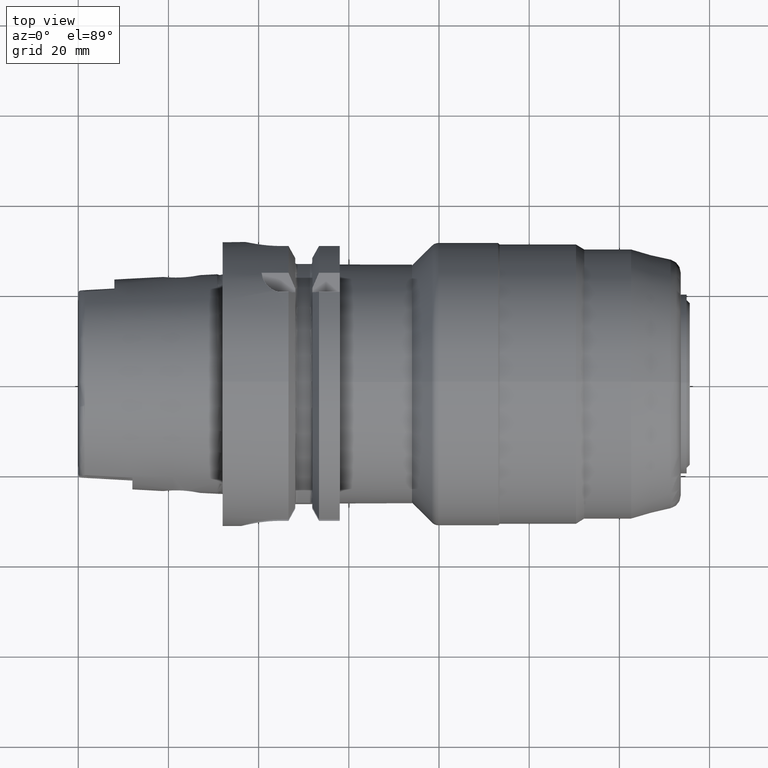
[diagram: clean part render]
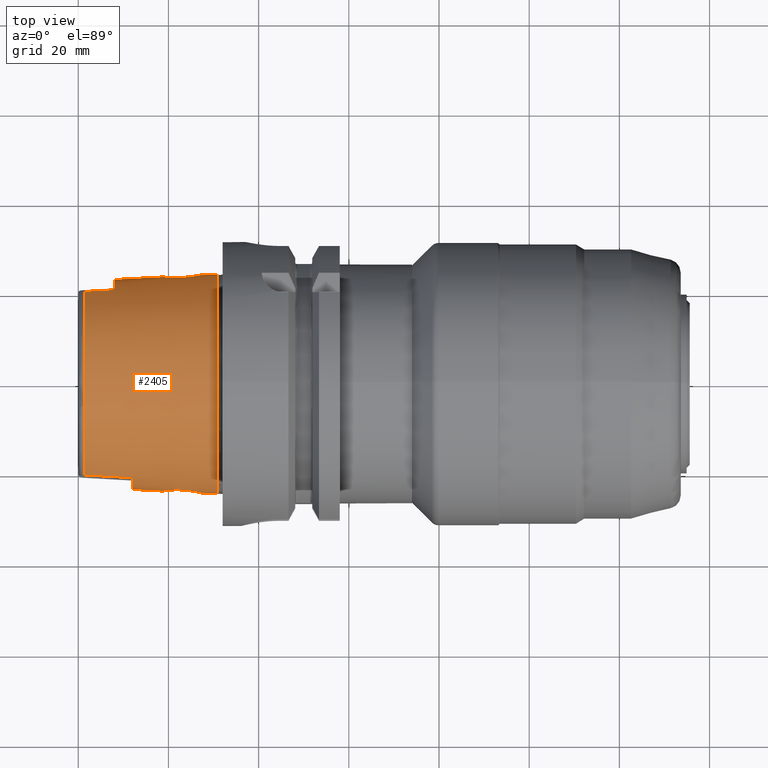
[diagram: same view with one face highlighted and labeled with its STEP entity id]
A machine part, top view. The second image highlights one B-rep face of the part: STEP entity #2405.
In plain terms, the highlighted conical surface has half-angle 2.862 deg.
Its self-contained STEP definition (entity closure, byte-faithful):
#2 = AXIS2_PLACEMENT_3D ( 'NONE', #1925, #3089, #1618 ) ;
#6 = CARTESIAN_POINT ( 'NONE',  ( 1.425093574584161500, 20.33595230467517100, -10.46629516310663500 ) ) ;
#60 = ORIENTED_EDGE ( 'NONE', *, *, #1464, .F. ) ;
#62 = AXIS2_PLACEMENT_3D ( 'NONE', #937, #74, #1803 ) ;
#74 = DIRECTION ( 'NONE',  ( -1.000000000000000000, -0.0000000000000000000, -0.0000000000000000000 ) ) ;
#79 = CARTESIAN_POINT ( 'NONE',  ( 8.000000000000000000, 20.71574050662263700, 10.44500336344006000 ) ) ;
#125 = CARTESIAN_POINT ( 'NONE',  ( 12.00000000000000000, -20.94577213106061100, -10.43238370813136300 ) ) ;
#157 = CARTESIAN_POINT ( 'NONE',  ( 25.18747572520790000, 23.78709185990440000, -3.610292531009739600 ) ) ;
#162 = CARTESIAN_POINT ( 'NONE',  ( 22.70717009949273900, -23.55372203154160000, 4.257179924091874000 ) ) ;
#167 = CARTESIAN_POINT ( 'NONE',  ( 20.66361652814779500, 23.56809046757185700, -3.544801830368131200 ) ) ;
#171 = CARTESIAN_POINT ( 'NONE',  ( 22.16985118510664800, -23.54072065059552800, 4.177378089973782200 ) ) ;
#180 = AXIS2_PLACEMENT_3D ( 'NONE', #3434, #1966, #1695 ) ;
#183 = CARTESIAN_POINT ( 'NONE',  ( 26.13301721065086300, 23.94384295948286800, 2.837393498273693500 ) ) ;
#190 = CARTESIAN_POINT ( 'NONE',  ( 24.33779940106989100, -23.67112881943512500, -4.062324369604381100 ) ) ;
#200 = CARTESIAN_POINT ( 'NONE',  ( 24.33094210324487200, 23.67513182186267400, -4.036686136669555200 ) ) ;
#202 = CARTESIAN_POINT ( 'NONE',  ( 18.88238772175079200, -23.72949894044217000, -0.8331179126223212700 ) ) ;
#211 = CARTESIAN_POINT ( 'NONE',  ( 21.12914641634791500, 23.54492637721436700, 3.855821941500016800 ) ) ;
#214 = CARTESIAN_POINT ( 'NONE',  ( 19.51172419005296300, -23.65735642368646900, -2.368118799417197300 ) ) ;
#215 = CARTESIAN_POINT ( 'NONE',  ( 3.341869946698635500, -20.44698660979812000, 10.45998592916148300 ) ) ;
#225 = CARTESIAN_POINT ( 'NONE',  ( 8.783636793981610700, -20.76092733119836400, 10.44249121731212800 ) ) ;
#277 = CARTESIAN_POINT ( 'NONE',  ( 19.19966803750817900, 23.68904204325100300, -1.895235483514292600 ) ) ;
#278 = CIRCLE ( 'NONE', #180, 23.20000000000000300 ) ;
#315 = CARTESIAN_POINT ( 'NONE',  ( 30.80149719334658400, 0.0000000000000000000, 24.34007485966732900 ) ) ;
#347 = B_SPLINE_CURVE_WITH_KNOTS ( 'NONE', 3,
 ( #2222, #3376, #1595, #214, #1633, #1301, #202, #1041, #509, #2793, #1323, #1062, #3629, #745, #768, #1942, #2780, #1926, #3676, #3077, #753, #171, #2479, #162, #1050, #3660, #2453, #1026, #1015, #3646, #1883, #3362, #1604, #2211, #491, #3335, #1334, #782, #1915, #3044, #2759, #3054, #3090, #3346, #3635, #2767, #2466, #1351, #1901, #3386, #3060, #1647, #736, #190, #2183, #2194, #2743, #480, #795, #3401, #3416 ),
 .UNSPECIFIED., .T., .F.,
 ( 4, 3, 3, 3, 3, 3, 3, 3, 3, 3, 3, 3, 3, 3, 3, 3, 3, 3, 3, 3, 4 ),
 ( 0.0000000000000000000, 0.05000000000000000300, 0.1000000000000000100, 0.1499999999999999900, 0.2000000000000000100, 0.2500000000000000000, 0.2999999999999999900, 0.3499999999999999800, 0.4000000000000000200, 0.4500000000000000100, 0.5000000000000000000, 0.5500000000000000400, 0.5999999999999999800, 0.6500000000000000200, 0.6999999999999999600, 0.7500000000000000000, 0.8000000000000000400, 0.8499999999999999800, 0.9000000000000000200, 0.9499999999999999600, 1.000000000000000000 ),
 .UNSPECIFIED. ) ;
#359 = CARTESIAN_POINT ( 'NONE',  ( 1.425093574584161500, -20.33595230467517100, -10.46629516310663300 ) ) ;
#398 = CARTESIAN_POINT ( 'NONE',  ( 30.80149719334658400, 0.0000000000000000000, 0.0000000000000000000 ) ) ;
#399 = VERTEX_POINT ( 'NONE', #3316 ) ;
#425 = ORIENTED_EDGE ( 'NONE', *, *, #572, .T. ) ;
#469 = CARTESIAN_POINT ( 'NONE',  ( 21.62476911272498400, 23.53316828497549600, -4.063857463222896100 ) ) ;
#476 = CARTESIAN_POINT ( 'NONE',  ( 24.82761096484166100, 23.73659309589318100, -3.816644248119909700 ) ) ;
#480 = CARTESIAN_POINT ( 'NONE',  ( 22.17327074711487000, -23.54139096424686900, -4.174578255460065900 ) ) ;
#487 = CARTESIAN_POINT ( 'NONE',  ( 26.14555546995022400, 23.94554545420960400, -2.826387748094202100 ) ) ;
#488 = CARTESIAN_POINT ( 'NONE',  ( 1.425093574584161500, -20.33595230467517100, -10.46629516310663300 ) ) ;
#491 = CARTESIAN_POINT ( 'NONE',  ( 24.83917356003768600, -23.73686520047144900, 3.819545358883261500 ) ) ;
#492 = CARTESIAN_POINT ( 'NONE',  ( 1.425093574584161500, -20.33595230467517100, 10.46629516310663300 ) ) ;
#493 = VERTEX_POINT ( 'NONE', #1938 ) ;
#509 = CARTESIAN_POINT ( 'NONE',  ( 18.77657874996498700, -23.74388441802556200, 0.2718322433420735700 ) ) ;
#510 = CARTESIAN_POINT ( 'NONE',  ( 5.258662882695443100, -20.55774047591732800, 10.45376734632754500 ) ) ;
#569 = B_SPLINE_CURVE_WITH_KNOTS ( 'NONE', 3,
 ( #167, #2179, #469, #2460, #3671, #3656, #3384, #1320, #200, #2204, #476, #2488, #157, #3643, #487, #1910, #1642, #2789, #1045, #3087, #2449, #791, #2776, #183, #1060, #2220, #2190, #3072, #1345, #1937, #3625, #2169, #211, #2807, #1072, #3100, #1591, #1877, #2830, #3413, #277, #2516, #3114, #2848 ),
 .UNSPECIFIED., .T., .F.,
 ( 4, 2, 2, 2, 2, 2, 2, 2, 2, 2, 2, 2, 2, 2, 2, 2, 2, 2, 2, 2, 2, 4 ),
 ( 0.0000000000000000000, 0.06250000000000015300, 0.09375000000000004200, 0.1249999999999999400, 0.1562499999999998300, 0.1718749999999997500, 0.1874999999999996700, 0.2500000000000000000, 0.3125000000000003300, 0.3750000000000006700, 0.4062500000000008900, 0.4375000000000010500, 0.5000000000000013300, 0.5312500000000013300, 0.5625000000000012200, 0.6250000000000011100, 0.6875000000000008900, 0.7500000000000006700, 0.8125000000000005600, 0.8750000000000003300, 0.9375000000000002200, 1.000000000000000000 ),
 .UNSPECIFIED. ) ;
#572 = EDGE_CURVE ( 'NONE', #3374, #399, #2805, .T. ) ;
#710 = EDGE_CURVE ( 'NONE', #493, #1373, #278, .T. ) ;
#729 = CONICAL_SURFACE ( 'NONE', #3240, 24.34007485966732900, 0.04995839572194275800 ) ;
#736 = CARTESIAN_POINT ( 'NONE',  ( 24.83495594207316900, -23.73367690106135400, -3.850047303755901300 ) ) ;
#745 = CARTESIAN_POINT ( 'NONE',  ( 19.81238089840712400, -23.62580361664449700, 2.833961536049630400 ) ) ;
#753 = CARTESIAN_POINT ( 'NONE',  ( 21.90230744076258800, -23.53665718921053300, 4.123714867043190700 ) ) ;
#761 = EDGE_CURVE ( 'NONE', #2223, #1373, #1852, .T. ) ;
#763 = ORIENTED_EDGE ( 'NONE', *, *, #2925, .T. ) ;
#768 = CARTESIAN_POINT ( 'NONE',  ( 20.19728467065028000, -23.59274732334468500, 3.223714604298466100 ) ) ;
#782 = CARTESIAN_POINT ( 'NONE',  ( 25.75727728703480700, -23.87318830650327700, 3.224289457282159000 ) ) ;
#791 = CARTESIAN_POINT ( 'NONE',  ( 26.73001574333116200, 24.06459715707596900, 1.879263713425604500 ) ) ;
#795 = CARTESIAN_POINT ( 'NONE',  ( 21.62218706724903300, -23.53293705241803100, -4.064443328656195400 ) ) ;
#809 = CARTESIAN_POINT ( 'NONE',  ( 1.425093574584161500, 20.33595230467517100, -10.46629516310663500 ) ) ;
#822 = AXIS2_PLACEMENT_3D ( 'NONE', #398, #2441, #2722 ) ;
#847 = CARTESIAN_POINT ( 'NONE',  ( 7.450313914593323300, 20.68407181687250300, -10.44675641790242300 ) ) ;
#877 = CARTESIAN_POINT ( 'NONE',  ( 1.425093574584161500, 20.33595230467517100, 10.46629516310663500 ) ) ;
#918 = VERTEX_POINT ( 'NONE', #877 ) ;
#927 = EDGE_CURVE ( 'NONE', #493, #918, #3641, .T. ) ;
#930 = CARTESIAN_POINT ( 'NONE',  ( 2.249608482552708300, 20.38369718093662500, 10.46358678570156000 ) ) ;
#937 = CARTESIAN_POINT ( 'NONE',  ( 1.425093574584161500, 0.0000000000000000000, 0.0000000000000000000 ) ) ;
#965 = ORIENTED_EDGE ( 'NONE', *, *, #761, .T. ) ;
#987 = CARTESIAN_POINT ( 'NONE',  ( 8.166346921571953700, -20.72541075632289400, -10.44444456954958300 ) ) ;
#1003 = AXIS2_PLACEMENT_3D ( 'NONE', #1140, #2871, #1120 ) ;
#1014 = CARTESIAN_POINT ( 'NONE',  ( 8.000000000000000000, 20.71574050662263700, -10.44500336344006000 ) ) ;
#1015 = CARTESIAN_POINT ( 'NONE',  ( 23.52597916883521400, -23.60233624867122900, 4.218162225798813800 ) ) ;
#1026 = CARTESIAN_POINT ( 'NONE',  ( 23.38886015811622700, -23.59275592822521300, 4.232737390913704300 ) ) ;
#1041 = CARTESIAN_POINT ( 'NONE',  ( 18.77499405094171800, -23.74337112039023600, -0.2849622680127422700 ) ) ;
#1045 = CARTESIAN_POINT ( 'NONE',  ( 27.17844325035120400, 24.16341902765280700, 0.2849698217314515800 ) ) ;
#1050 = CARTESIAN_POINT ( 'NONE',  ( 22.97917669523274500, -23.56780964208686400, 4.255699465829896300 ) ) ;
#1060 = CARTESIAN_POINT ( 'NONE',  ( 25.75197427222897100, 23.87242083910850000, 3.228076906425898100 ) ) ;
#1062 = CARTESIAN_POINT ( 'NONE',  ( 19.20340123074108600, -23.68822864218061500, 1.905225742128575000 ) ) ;
#1072 = CARTESIAN_POINT ( 'NONE',  ( 19.81034850176890000, 23.62609199216923600, 2.830691077890888700 ) ) ;
#1120 = DIRECTION ( 'NONE',  ( 0.0000000000000000000, 0.0000000000000000000, 1.000000000000000000 ) ) ;
#1123 = ORIENTED_EDGE ( 'NONE', *, *, #1355, .F. ) ;
#1140 = CARTESIAN_POINT ( 'NONE',  ( 1.425093574584161500, 0.0000000000000000000, 0.0000000000000000000 ) ) ;
#1185 = EDGE_CURVE ( 'NONE', #3760, #3760, #347, .T. ) ;
#1238 = EDGE_CURVE ( 'NONE', #2223, #1860, #2795, .T. ) ;
#1260 = CARTESIAN_POINT ( 'NONE',  ( 10.08316607788346400, -20.83571793241839000, -10.43837222232888200 ) ) ;
#1301 = CARTESIAN_POINT ( 'NONE',  ( 18.98978139255986300, -23.71562676049410400, -1.381273557231900200 ) ) ;
#1320 = CARTESIAN_POINT ( 'NONE',  ( 24.07281959370179400, 23.64792003798675100, -4.117531384564303600 ) ) ;
#1323 = CARTESIAN_POINT ( 'NONE',  ( 18.99572566823791300, -23.71556969111713900, 1.392136284556626500 ) ) ;
#1334 = CARTESIAN_POINT ( 'NONE',  ( 25.30508331705895800, -23.80439428843181200, 3.533733242334153400 ) ) ;
#1345 = CARTESIAN_POINT ( 'NONE',  ( 24.07445698258153400, 23.64853521158847400, 4.114493699329996100 ) ) ;
#1351 = CARTESIAN_POINT ( 'NONE',  ( 26.75110390981613800, -24.06685499695399600, -1.904061382926910200 ) ) ;
#1355 = EDGE_CURVE ( 'NONE', #3374, #918, #2513, .T. ) ;
#1373 = VERTEX_POINT ( 'NONE', #1014 ) ;
#1377 = CARTESIAN_POINT ( 'NONE',  ( 7.725156798764171400, 20.69990886535863300, -10.44587900306095400 ) ) ;
#1384 = B_SPLINE_CURVE_WITH_KNOTS ( 'NONE', 3,
 ( #125, #1260, #987, #3010, #1511, #2379, #359 ),
 .UNSPECIFIED., .F., .F.,
 ( 4, 3, 4 ),
 ( 0.0000000000000000000, 0.005760000057748238000, 0.01059252934237851100 ),
 .UNSPECIFIED. ) ;
#1402 = EDGE_LOOP ( 'NONE', ( #2948 ) ) ;
#1426 = ORIENTED_EDGE ( 'NONE', *, *, #710, .F. ) ;
#1464 = EDGE_CURVE ( 'NONE', #2763, #399, #3393, .T. ) ;
#1484 = FACE_BOUND ( 'NONE', #1402, .T. ) ;
#1499 = CARTESIAN_POINT ( 'NONE',  ( 1.974769841689880500, 20.36778795857090400, 10.46448772171441500 ) ) ;
#1511 = CARTESIAN_POINT ( 'NONE',  ( 4.641382270535288500, -20.52206617993723400, -10.45577232322931000 ) ) ;
#1577 = FACE_BOUND ( 'NONE', #1802, .T. ) ;
#1581 = VERTEX_POINT ( 'NONE', #1696 ) ;
#1591 = CARTESIAN_POINT ( 'NONE',  ( 18.99388402952158100, 23.71569589717962500, 1.388473049825107400 ) ) ;
#1595 = CARTESIAN_POINT ( 'NONE',  ( 19.82372397669924900, -23.62554403242561200, -2.842544309768315600 ) ) ;
#1604 = CARTESIAN_POINT ( 'NONE',  ( 24.33810937420025400, -23.67648096969749700, 4.030870427547173000 ) ) ;
#1618 = DIRECTION ( 'NONE',  ( 0.0000000000000000000, 0.0000000000000000000, 1.000000000000000000 ) ) ;
#1629 = ORIENTED_EDGE ( 'NONE', *, *, #2775, .T. ) ;
#1633 = CARTESIAN_POINT ( 'NONE',  ( 19.19972440340668000, -23.68916881494732600, -1.893693289066078500 ) ) ;
#1642 = CARTESIAN_POINT ( 'NONE',  ( 26.95804715310587700, 24.11425238373152200, -1.392442890027241000 ) ) ;
#1647 = CARTESIAN_POINT ( 'NONE',  ( 25.29840340258237000, -23.80409646007306500, -3.533464944530263300 ) ) ;
#1672 = CIRCLE ( 'NONE', #822, 24.34007485966732900 ) ;
#1695 = DIRECTION ( 'NONE',  ( 0.0000000000000000000, 0.0000000000000000000, 1.000000000000000000 ) ) ;
#1696 = CARTESIAN_POINT ( 'NONE',  ( 20.66361652814780200, 23.56809046757186000, -3.544801830368131700 ) ) ;
#1802 = EDGE_LOOP ( 'NONE', ( #763 ) ) ;
#1803 = DIRECTION ( 'NONE',  ( 0.0000000000000000000, 0.0000000000000000000, 1.000000000000000000 ) ) ;
#1825 = CARTESIAN_POINT ( 'NONE',  ( 1.425093574584161500, 20.33595230467517100, 10.46629516310663500 ) ) ;
#1852 = B_SPLINE_CURVE_WITH_KNOTS ( 'NONE', 3,
 ( #809, #2813, #1989, #3449, #847, #1377, #3167 ),
 .UNSPECIFIED., .F., .F.,
 ( 4, 3, 4 ),
 ( 2.168404344971008900E-019, 0.005760000065658930900, 0.006585900617290585400 ),
 .UNSPECIFIED. ) ;
#1860 = VERTEX_POINT ( 'NONE', #488 ) ;
#1877 = CARTESIAN_POINT ( 'NONE',  ( 18.77597638874773600, 23.74390315330566300, 0.2678564356709001200 ) ) ;
#1883 = CARTESIAN_POINT ( 'NONE',  ( 23.80189075954666900, -23.62521458459382400, 4.168197664816903900 ) ) ;
#1901 = CARTESIAN_POINT ( 'NONE',  ( 26.44729116604683800, -24.00599535762667700, -2.366571100399792900 ) ) ;
#1910 = CARTESIAN_POINT ( 'NONE',  ( 26.75194818606380000, 24.06699491119911000, -1.902665969513414900 ) ) ;
#1915 = CARTESIAN_POINT ( 'NONE',  ( 26.13753732405685800, -23.94438315670680200, 2.834601726758929600 ) ) ;
#1922 = ORIENTED_EDGE ( 'NONE', *, *, #1238, .F. ) ;
#1925 = CARTESIAN_POINT ( 'NONE',  ( 12.00000000000000000, 0.0000000000000000000, 0.0000000000000000000 ) ) ;
#1926 = CARTESIAN_POINT ( 'NONE',  ( 21.13908023345470600, -23.54755106417474800, 3.831216781536157500 ) ) ;
#1937 = CARTESIAN_POINT ( 'NONE',  ( 23.25006467060924100, 23.57679908238506500, 4.283732951161183200 ) ) ;
#1938 = CARTESIAN_POINT ( 'NONE',  ( 8.000000000000000000, 20.71574050662263700, 10.44500336344006000 ) ) ;
#1942 = CARTESIAN_POINT ( 'NONE',  ( 20.66373368261011800, -23.56873316037696100, 3.540565595432893200 ) ) ;
#1966 = DIRECTION ( 'NONE',  ( -1.000000000000000000, 0.0000000000000000000, 0.0000000000000000000 ) ) ;
#1989 = CARTESIAN_POINT ( 'NONE',  ( 5.258662882695442200, 20.55774047591733100, -10.45376734632754500 ) ) ;
#2038 = DIRECTION ( 'NONE',  ( 0.0000000000000000000, 0.0000000000000000000, -1.000000000000000000 ) ) ;
#2052 = FACE_BOUND ( 'NONE', #3243, .T. ) ;
#2087 = EDGE_CURVE ( 'NONE', #2763, #1860, #1384, .T. ) ;
#2112 = CARTESIAN_POINT ( 'NONE',  ( 1.425093574584161500, -20.33595230467517100, 10.46629516310663300 ) ) ;
#2169 = CARTESIAN_POINT ( 'NONE',  ( 21.63318729153229100, 23.53261109606477700, 4.069510646678135200 ) ) ;
#2179 = CARTESIAN_POINT ( 'NONE',  ( 21.11983206216902400, 23.54463449942226900, -3.854118344444557000 ) ) ;
#2183 = CARTESIAN_POINT ( 'NONE',  ( 23.80198396375098800, -23.62429930160084600, -4.173408924040481700 ) ) ;
#2190 = CARTESIAN_POINT ( 'NONE',  ( 24.83341356714478500, 23.73590976572265600, 3.823658455021296200 ) ) ;
#2194 = CARTESIAN_POINT ( 'NONE',  ( 23.26616852643208600, -23.57746978376656700, -4.284493478476583100 ) ) ;
#2204 = CARTESIAN_POINT ( 'NONE',  ( 24.70507509589991800, 23.72064656818110300, -3.876517917970251600 ) ) ;
#2211 = CARTESIAN_POINT ( 'NONE',  ( 24.58864146711896800, -23.70667308508447100, 3.925207893215217200 ) ) ;
#2220 = CARTESIAN_POINT ( 'NONE',  ( 25.07169324217608200, 23.76884171059951700, 3.693539656620960600 ) ) ;
#2222 = CARTESIAN_POINT ( 'NONE',  ( 20.66368075891445600, -23.56810820675151400, -3.544705480211690900 ) ) ;
#2223 = VERTEX_POINT ( 'NONE', #6 ) ;
#2233 = CARTESIAN_POINT ( 'NONE',  ( 10.39181319841948800, -20.85343877464780600, 10.43740795638908200 ) ) ;
#2379 = CARTESIAN_POINT ( 'NONE',  ( 3.033232093429258500, -20.42910795161401400, -10.46100183714581500 ) ) ;
#2405 = ADVANCED_FACE ( 'NONE', ( #1484, #1577, #2808, #2052 ), #729, .T. ) ;
#2434 = VERTEX_POINT ( 'NONE', #315 ) ;
#2441 = DIRECTION ( 'NONE',  ( -1.000000000000000000, -0.0000000000000000000, -0.0000000000000000000 ) ) ;
#2449 = CARTESIAN_POINT ( 'NONE',  ( 26.93939794669909200, 24.10954662697594800, 1.368106301618795500 ) ) ;
#2453 = CARTESIAN_POINT ( 'NONE',  ( 23.25174114739724000, -23.58317560777919700, 4.247312556028595600 ) ) ;
#2460 = CARTESIAN_POINT ( 'NONE',  ( 22.45007622902295500, 23.54584523446059700, -4.228736219318585100 ) ) ;
#2466 = CARTESIAN_POINT ( 'NONE',  ( 26.95802988243960000, -24.11428566942217000, -1.391621513032486900 ) ) ;
#2479 = CARTESIAN_POINT ( 'NONE',  ( 22.43739492945070400, -23.54478411198052300, 4.231041312904374700 ) ) ;
#2488 = CARTESIAN_POINT ( 'NONE',  ( 25.06833244550528100, 23.76974287110211400, -3.683859592568051500 ) ) ;
#2513 = CIRCLE ( 'NONE', #62, 22.87125467872920800 ) ;
#2516 = CARTESIAN_POINT ( 'NONE',  ( 19.82324667174624400, 23.62534184058665700, -2.844019568501572300 ) ) ;
#2649 = CARTESIAN_POINT ( 'NONE',  ( 4.166389578331743900, 20.49465136330132300, 10.45730347301843300 ) ) ;
#2722 = DIRECTION ( 'NONE',  ( 0.0000000000000000000, 0.0000000000000000000, 1.000000000000000000 ) ) ;
#2730 = ORIENTED_EDGE ( 'NONE', *, *, #927, .T. ) ;
#2743 = CARTESIAN_POINT ( 'NONE',  ( 22.72435442698070300, -23.54984487607570600, -4.284713182263937300 ) ) ;
#2759 = CARTESIAN_POINT ( 'NONE',  ( 26.75634214470373400, -24.06846786870283200, 1.889446643284336400 ) ) ;
#2763 = VERTEX_POINT ( 'NONE', #3323 ) ;
#2767 = CARTESIAN_POINT ( 'NONE',  ( 27.06733113401260500, -24.13904724267265300, -0.8315733511617321400 ) ) ;
#2775 = EDGE_CURVE ( 'NONE', #2434, #2434, #1672, .T. ) ;
#2776 = CARTESIAN_POINT ( 'NONE',  ( 26.59890799549418700, 24.03718500854865400, 2.127193530479788200 ) ) ;
#2780 = CARTESIAN_POINT ( 'NONE',  ( 20.89695818859003800, -23.55672607889309900, 3.698991091000107400 ) ) ;
#2789 = CARTESIAN_POINT ( 'NONE',  ( 27.17730844313979300, 24.16385940885954000, -0.2712082377010705500 ) ) ;
#2793 = CARTESIAN_POINT ( 'NONE',  ( 18.88615220910145000, -23.72972705457134900, 0.8319842639493499900 ) ) ;
#2795 = CIRCLE ( 'NONE', #1003, 22.87125467872920800 ) ;
#2805 = B_SPLINE_CURVE_WITH_KNOTS ( 'NONE', 3,
 ( #492, #215, #510, #2821, #225, #2233, #2878 ),
 .UNSPECIFIED., .F., .F.,
 ( 4, 3, 4 ),
 ( 2.168404344971008900E-019, 0.005760000065658932600, 0.01059252933609166500 ),
 .UNSPECIFIED. ) ;
#2807 = CARTESIAN_POINT ( 'NONE',  ( 20.19680383723608900, 23.59291290006519000, 3.222315301914313600 ) ) ;
#2808 = FACE_OUTER_BOUND ( 'NONE', #3710, .T. ) ;
#2813 = CARTESIAN_POINT ( 'NONE',  ( 3.341869946698635000, 20.44698660979812000, -10.45998592916148300 ) ) ;
#2821 = CARTESIAN_POINT ( 'NONE',  ( 7.175471350384727400, -20.66822931768686500, 10.44763561879608600 ) ) ;
#2830 = CARTESIAN_POINT ( 'NONE',  ( 18.77539697464954900, 23.74336576697066200, -0.2875222148382028400 ) ) ;
#2848 = CARTESIAN_POINT ( 'NONE',  ( 20.66361652814779500, 23.56809046757185700, -3.544801830368131200 ) ) ;
#2861 = CARTESIAN_POINT ( 'NONE',  ( 20.66368075891445600, -23.56810820675151400, -3.544705480211690900 ) ) ;
#2871 = DIRECTION ( 'NONE',  ( -1.000000000000000000, -0.0000000000000000000, -0.0000000000000000000 ) ) ;
#2878 = CARTESIAN_POINT ( 'NONE',  ( 12.00000000000000000, -20.94577213106061500, 10.43238370813136500 ) ) ;
#2914 = CARTESIAN_POINT ( 'NONE',  ( 30.80149719334658400, 0.0000000000000000000, 0.0000000000000000000 ) ) ;
#2925 = EDGE_CURVE ( 'NONE', #1581, #1581, #569, .T. ) ;
#2948 = ORIENTED_EDGE ( 'NONE', *, *, #1185, .T. ) ;
#3010 = CARTESIAN_POINT ( 'NONE',  ( 6.249543492149839200, -20.61483614921136000, -10.45060436950518400 ) ) ;
#3044 = CARTESIAN_POINT ( 'NONE',  ( 26.44693973438029400, -24.00642551270481900, 2.362024185021633000 ) ) ;
#3054 = CARTESIAN_POINT ( 'NONE',  ( 26.96451521146541800, -24.11503545249524900, 1.378909687600594000 ) ) ;
#3060 = CARTESIAN_POINT ( 'NONE',  ( 25.76185086309157400, -23.87451601908478000, -3.216882585304624800 ) ) ;
#3072 = CARTESIAN_POINT ( 'NONE',  ( 24.33381555372157500, 23.67567146768352900, 4.034335613940459800 ) ) ;
#3077 = CARTESIAN_POINT ( 'NONE',  ( 21.64111940095354900, -23.53750703887378400, 4.043450034738978800 ) ) ;
#3087 = CARTESIAN_POINT ( 'NONE',  ( 27.01841489079965400, 24.12723240589468400, 1.103746326680102900 ) ) ;
#3089 = DIRECTION ( 'NONE',  ( -1.000000000000000000, 0.0000000000000000000, 0.0000000000000000000 ) ) ;
#3090 = CARTESIAN_POINT ( 'NONE',  ( 27.07139850745732400, -24.13923137644913900, 0.8321350215740004300 ) ) ;
#3100 = CARTESIAN_POINT ( 'NONE',  ( 19.20098559793230900, 23.68835869110681400, 1.902083003456349000 ) ) ;
#3114 = CARTESIAN_POINT ( 'NONE',  ( 20.20740099412656900, 23.59154643572144700, -3.235485316291707700 ) ) ;
#3167 = CARTESIAN_POINT ( 'NONE',  ( 8.000000000000000000, 20.71574050662263700, -10.44500336344006000 ) ) ;
#3240 = AXIS2_PLACEMENT_3D ( 'NONE', #2914, #3539, #2038 ) ;
#3243 = EDGE_LOOP ( 'NONE', ( #1426, #2730, #1123, #425, #60, #3734, #1922, #965 ) ) ;
#3269 = CARTESIAN_POINT ( 'NONE',  ( 6.083187090671283500, 20.60532739029213900, 10.45111025392054100 ) ) ;
#3316 = CARTESIAN_POINT ( 'NONE',  ( 12.00000000000000000, -20.94577213106061500, 10.43238370813136500 ) ) ;
#3323 = CARTESIAN_POINT ( 'NONE',  ( 12.00000000000000000, -20.94577213106061100, -10.43238370813136300 ) ) ;
#3335 = CARTESIAN_POINT ( 'NONE',  ( 25.07898633207103600, -23.76999727939608000, 3.688455134860150400 ) ) ;
#3346 = CARTESIAN_POINT ( 'NONE',  ( 27.17828180344922700, -24.16342730040302900, 0.2853603555474068500 ) ) ;
#3362 = CARTESIAN_POINT ( 'NONE',  ( 24.07585913834282100, -23.64907642979602900, 4.111790827424262500 ) ) ;
#3374 = VERTEX_POINT ( 'NONE', #2112 ) ;
#3376 = CARTESIAN_POINT ( 'NONE',  ( 20.20760135115010700, -23.59174103178537900, -3.234250293784748400 ) ) ;
#3384 = CARTESIAN_POINT ( 'NONE',  ( 23.53917354573613400, 23.60134111372366700, -4.227842427319842500 ) ) ;
#3386 = CARTESIAN_POINT ( 'NONE',  ( 26.14347842227753600, -23.94513571829935800, -2.829080817872676100 ) ) ;
#3393 = CIRCLE ( 'NONE', #2, 23.40000000000000600 ) ;
#3401 = CARTESIAN_POINT ( 'NONE',  ( 21.11899040451556400, -23.54451526875093500, -3.854636686270680900 ) ) ;
#3413 = CARTESIAN_POINT ( 'NONE',  ( 18.99026674193827800, 23.71548027893864200, -1.384294739318668600 ) ) ;
#3416 = CARTESIAN_POINT ( 'NONE',  ( 20.66368075891445600, -23.56810820675151400, -3.544705480211690900 ) ) ;
#3434 = CARTESIAN_POINT ( 'NONE',  ( 8.000000000000000000, 0.0000000000000000000, 0.0000000000000000000 ) ) ;
#3449 = CARTESIAN_POINT ( 'NONE',  ( 7.175471350384725600, 20.66822931768686900, -10.44763561879608600 ) ) ;
#3539 = DIRECTION ( 'NONE',  ( 1.000000000000000000, 0.0000000000000000000, 0.0000000000000000000 ) ) ;
#3542 = CARTESIAN_POINT ( 'NONE',  ( 1.699931537981442100, 20.35187301547440000, 10.46539051036085300 ) ) ;
#3625 = CARTESIAN_POINT ( 'NONE',  ( 22.70855334153944200, 23.54881939157853000, 4.285889728525045700 ) ) ;
#3629 = CARTESIAN_POINT ( 'NONE',  ( 19.50789106457410700, -23.65701612941255800, 2.369593639089102600 ) ) ;
#3635 = CARTESIAN_POINT ( 'NONE',  ( 27.17663238558561300, -24.16380881592313700, -0.2715251892909773000 ) ) ;
#3641 = B_SPLINE_CURVE_WITH_KNOTS ( 'NONE', 3,
 ( #79, #3269, #2649, #930, #1499, #3542, #1825 ),
 .UNSPECIFIED., .F., .F.,
 ( 4, 3, 4 ),
 ( 0.0000000000000000000, 0.005760000062295603100, 0.006585900617448520700 ),
 .UNSPECIFIED. ) ;
#3643 = CARTESIAN_POINT ( 'NONE',  ( 25.76273980086389800, 23.87462787419030300, -3.216245746835538100 ) ) ;
#3646 = CARTESIAN_POINT ( 'NONE',  ( 23.66490657014859200, -23.61328366199272100, 4.196401083513224600 ) ) ;
#3656 = CARTESIAN_POINT ( 'NONE',  ( 23.26722021207066500, 23.58240293149054200, -4.255931109373247700 ) ) ;
#3660 = CARTESIAN_POINT ( 'NONE',  ( 23.11517999310274600, -23.57485344735949800, 4.254959236698908000 ) ) ;
#3671 = CARTESIAN_POINT ( 'NONE',  ( 22.72354597447222300, 23.55473148543955000, -4.256197250030353100 ) ) ;
#3676 = CARTESIAN_POINT ( 'NONE',  ( 21.39009981720412800, -23.54252905152426600, 3.937333408137568400 ) ) ;
#3710 = EDGE_LOOP ( 'NONE', ( #1629 ) ) ;
#3734 = ORIENTED_EDGE ( 'NONE', *, *, #2087, .T. ) ;
#3760 = VERTEX_POINT ( 'NONE', #2861 ) ;